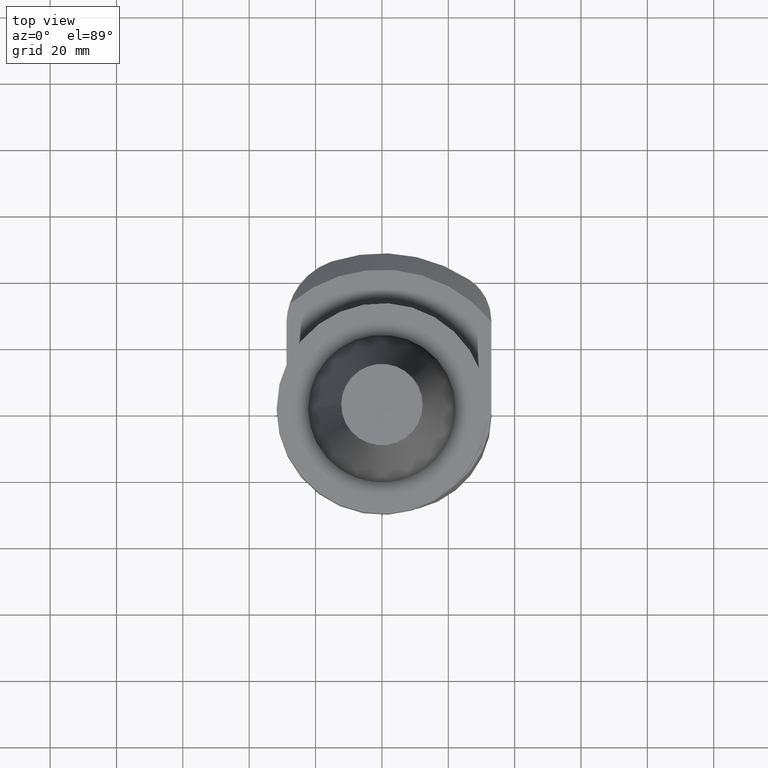
[diagram: clean part render]
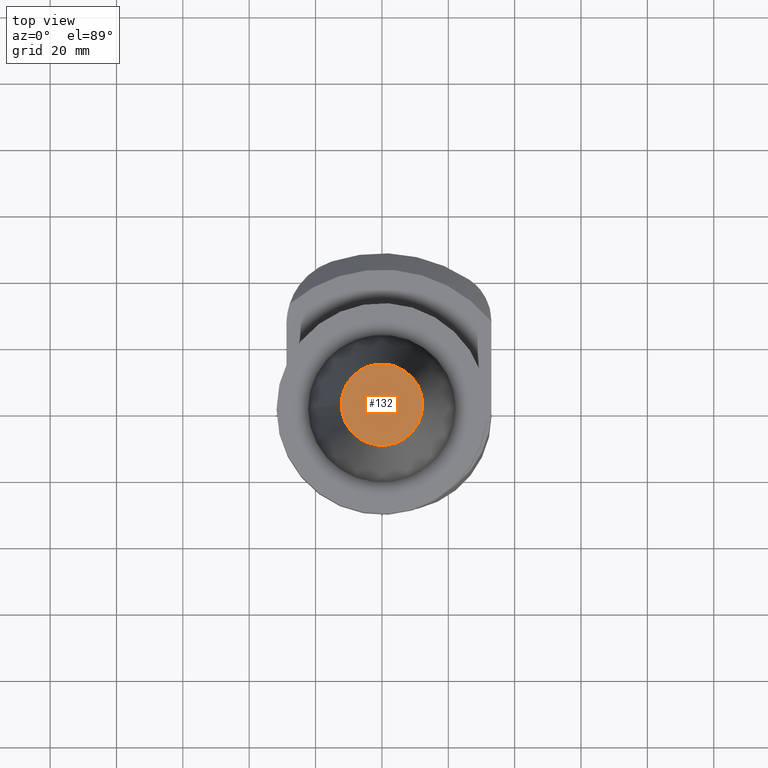
[diagram: same view with one face highlighted and labeled with its STEP entity id]
A machine part, top view. The second image highlights one B-rep face of the part: STEP entity #132.
In plain terms, the highlighted planar face has unit normal (-0, 0, 1).
Its self-contained STEP definition (entity closure, byte-faithful):
#125=EDGE_CURVE('Unnamed[1]',#349,#349,#350,.T.);
#132=ADVANCED_FACE('Unnamed[1]',(#360),#361,.T.);
#349=VERTEX_POINT('',#644);
#350=CIRCLE('',#645,12.2718750014769);
#360=FACE_OUTER_BOUND('',#659,.T.);
#361=PLANE('',#660);
#644=CARTESIAN_POINT('',(-12.2718750014769,6.43341406810461E-015,68.25));
#645=AXIS2_PLACEMENT_3D('',#1061,#1062,#1063);
#659=EDGE_LOOP('',(#1069));
#660=AXIS2_PLACEMENT_3D('',#1070,#1071,#1072);
#1061=CARTESIAN_POINT('',(-7.14321830332606E-015,4.17910720209035E-015,68.25));
#1062=DIRECTION('',(1.33746078076942E-015,-6.12323399573679E-017,-1.0));
#1063=DIRECTION('',(-1.0,1.83697019872103E-016,-1.33746078076942E-015));
#1069=ORIENTED_EDGE('',*,*,#125,.F.);
#1070=CARTESIAN_POINT('',(-6.13593750073844,5.30626063509748E-015,68.25));
#1071=DIRECTION('',(-1.28046659188758E-015,6.12323399573679E-017,1.0));
#1072=DIRECTION('',(1.0,-1.83697019872103E-016,1.28046659188758E-015));